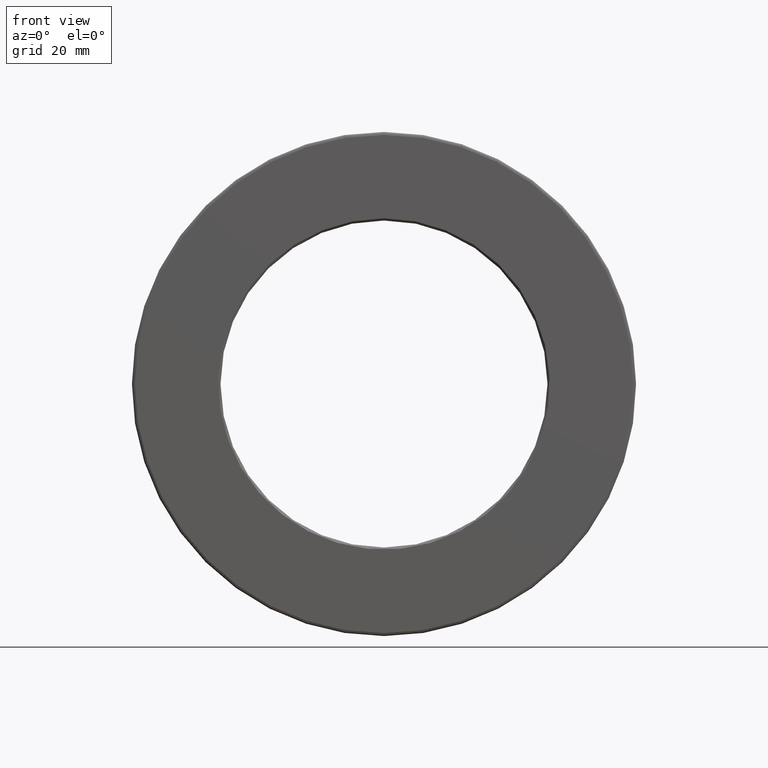
[diagram: clean part render]
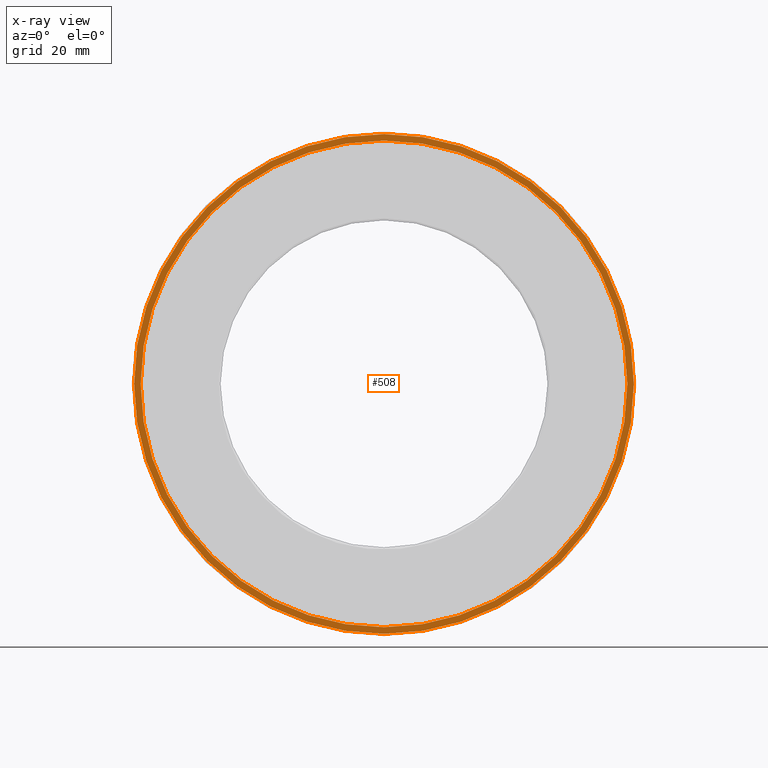
[diagram: x-ray — body ghosted, one internal face saturated and labeled with its STEP entity id]
A machine part, front view, then the same camera in x-ray: the body is ghosted and one INTERNAL B-rep face — a face not visible from any outside direction — is saturated and labeled: STEP entity #508.
In plain terms, the highlighted planar face has unit normal (-0, 1, 0).
Its self-contained STEP definition (entity closure, byte-faithful):
#2 = CARTESIAN_POINT ( 'NONE',  ( 0.0000000000000000000, 1.464999999999999900, 0.0000000000000000000 ) ) ;
#9 = FACE_BOUND ( 'NONE', #58, .T. ) ;
#58 = EDGE_LOOP ( 'NONE', ( #234 ) ) ;
#102 = ORIENTED_EDGE ( 'NONE', *, *, #336, .F. ) ;
#134 = CARTESIAN_POINT ( 'NONE',  ( 0.0000000000000000000, 1.464999999999999900, 0.0000000000000000000 ) ) ;
#146 = CIRCLE ( 'NONE', #387, 2.232499999999999900 ) ;
#148 = DIRECTION ( 'NONE',  ( 0.0000000000000000000, 0.0000000000000000000, 1.000000000000000000 ) ) ;
#156 = VERTEX_POINT ( 'NONE', #391 ) ;
#186 = DIRECTION ( 'NONE',  ( 0.0000000000000000000, 0.0000000000000000000, 1.000000000000000000 ) ) ;
#223 = AXIS2_PLACEMENT_3D ( 'NONE', #134, #448, #186 ) ;
#228 = CARTESIAN_POINT ( 'NONE',  ( 0.0000000000000000000, 1.464999999999999900, 0.0000000000000000000 ) ) ;
#234 = ORIENTED_EDGE ( 'NONE', *, *, #555, .T. ) ;
#280 = DIRECTION ( 'NONE',  ( -0.0000000000000000000, 1.000000000000000000, -0.0000000000000000000 ) ) ;
#336 = EDGE_CURVE ( 'NONE', #381, #381, #345, .T. ) ;
#345 = CIRCLE ( 'NONE', #223, 2.292499999999999500 ) ;
#372 = FACE_OUTER_BOUND ( 'NONE', #476, .T. ) ;
#381 = VERTEX_POINT ( 'NONE', #599 ) ;
#387 = AXIS2_PLACEMENT_3D ( 'NONE', #2, #280, #437 ) ;
#391 = CARTESIAN_POINT ( 'NONE',  ( 0.0000000000000000000, 1.464999999999999900, 2.232499999999999900 ) ) ;
#414 = PLANE ( 'NONE',  #481 ) ;
#417 = DIRECTION ( 'NONE',  ( -0.0000000000000000000, 1.000000000000000000, 0.0000000000000000000 ) ) ;
#437 = DIRECTION ( 'NONE',  ( 0.0000000000000000000, 0.0000000000000000000, 1.000000000000000000 ) ) ;
#448 = DIRECTION ( 'NONE',  ( -0.0000000000000000000, 1.000000000000000000, -0.0000000000000000000 ) ) ;
#476 = EDGE_LOOP ( 'NONE', ( #102 ) ) ;
#481 = AXIS2_PLACEMENT_3D ( 'NONE', #228, #417, #148 ) ;
#508 = ADVANCED_FACE ( 'NONE', ( #372, #9 ), #414, .F. ) ;
#555 = EDGE_CURVE ( 'NONE', #156, #156, #146, .T. ) ;
#599 = CARTESIAN_POINT ( 'NONE',  ( 0.0000000000000000000, 1.464999999999999900, 2.292499999999999500 ) ) ;